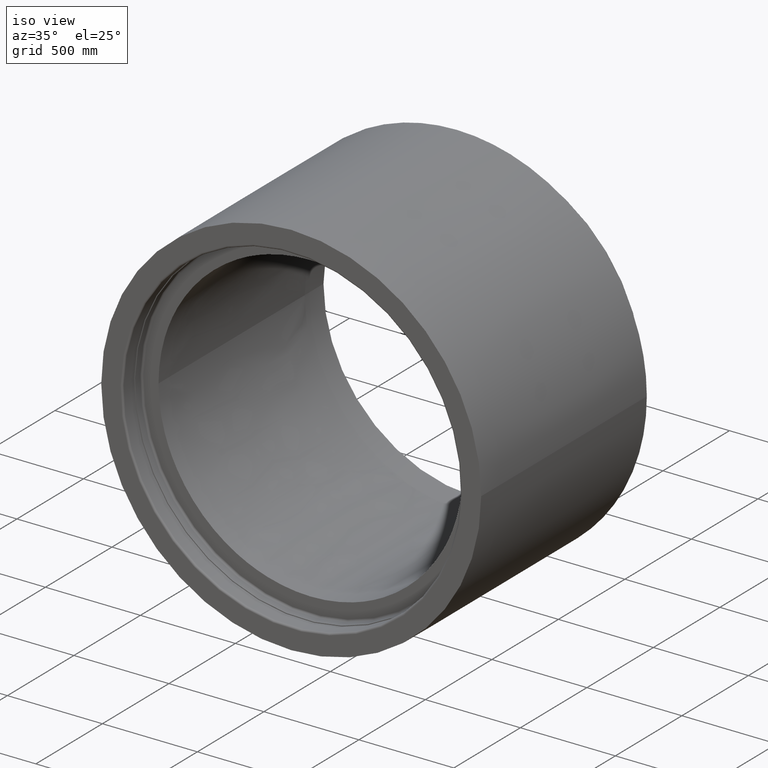
[diagram: clean part render]
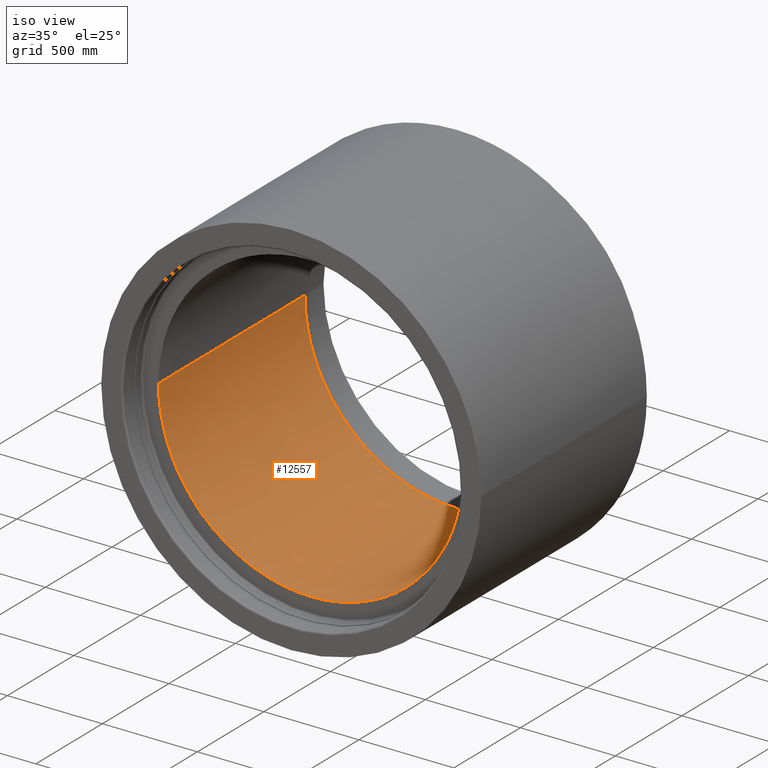
[diagram: same view with one face highlighted and labeled with its STEP entity id]
A machine part, iso view. The second image highlights one B-rep face of the part: STEP entity #12557.
In plain terms, the highlighted face is a freeform B-spline surface patch.
Its self-contained STEP definition (entity closure, byte-faithful):
#263 = ORIENTED_EDGE ( 'NONE', *, *, #22669, .F. ) ;
#284 = CARTESIAN_POINT ( 'NONE',  ( 0.0000000000000000000, 0.0000000000000000000, 1100.000000000000000 ) ) ;
#293 = CARTESIAN_POINT ( 'NONE',  ( 799.5785514088180435, -31.78170904867310398, 366.6666666666666856 ) ) ;
#308 = CARTESIAN_POINT ( 'NONE',  ( -702.1910649494287782, 383.3115335060172129, 1100.000000000000000 ) ) ;
#319 = AXIS2_PLACEMENT_3D ( 'NONE', #4467, #20432, #4586 ) ;
#342 = AXIS2_PLACEMENT_3D ( 'NONE', #16787, #15402, #9969 ) ;
#406 = CARTESIAN_POINT ( 'NONE',  ( 797.6959486832436141, -63.37803044931553131, 0.0000000000000000000 ) ) ;
#460 = DIRECTION ( 'NONE',  ( 1.000000000000000000, 0.0000000000000000000, 0.0000000000000000000 ) ) ;
#517 = FACE_OUTER_BOUND ( 'NONE', #4854, .T. ) ;
#544 = VERTEX_POINT ( 'NONE', #9349 ) ;
#564 = CARTESIAN_POINT ( 'NONE',  ( 702.1910585303028256, 383.3115299945911829, 5.551115123125782702E-14 ) ) ;
#668 = EDGE_CURVE ( 'NONE', #1052, #15465, #15838, .T. ) ;
#679 = CIRCLE ( 'NONE', #6593, 800.0000000000000000 ) ;
#740 = CARTESIAN_POINT ( 'NONE',  ( 212.1671872000005976, -799.9999999999993179, 733.3333333333333712 ) ) ;
#769 = VERTEX_POINT ( 'NONE', #20820 ) ;
#797 = EDGE_CURVE ( 'NONE', #769, #1052, #12148, .T. ) ;
#835 = VERTEX_POINT ( 'NONE', #9900 ) ;
#856 = CARTESIAN_POINT ( 'NONE',  ( 685.7053104007546835, 445.6655394977215678, 1100.000000000000000 ) ) ;
#912 = ORIENTED_EDGE ( 'NONE', *, *, #21025, .F. ) ;
#968 = CARTESIAN_POINT ( 'NONE',  ( -799.9999999999998863, -212.1671871999999439, 0.0000000000000000000 ) ) ;
#1052 = VERTEX_POINT ( 'NONE', #12331 ) ;
#1088 = CARTESIAN_POINT ( 'NONE',  ( -799.9999999999998863, -212.1671871999999439, 1100.000000000000000 ) ) ;
#1128 = EDGE_CURVE ( 'NONE', #21496, #835, #13607, .T. ) ;
#1153 = VERTEX_POINT ( 'NONE', #22613 ) ;
#1205 = CARTESIAN_POINT ( 'NONE',  ( 212.1671872000005976, -799.9999999999992042, 0.0000000000000000000 ) ) ;
#1320 = CARTESIAN_POINT ( 'NONE',  ( 799.9999999999997726, 10.60835936000093582, 1100.000000000000000 ) ) ;
#1433 = CIRCLE ( 'NONE', #2517, 800.0000000000000000 ) ;
#1451 = AXIS2_PLACEMENT_3D ( 'NONE', #12956, #20021, #2095 ) ;
#1552 = CARTESIAN_POINT ( 'NONE',  ( 800.0000000000000000, -2.343931406529778409E-30, 0.0000000000000000000 ) ) ;
#1719 = VERTEX_POINT ( 'NONE', #8368 ) ;
#1825 = CIRCLE ( 'NONE', #1451, 800.0000000000000000 ) ;
#1906 = DIRECTION ( 'NONE',  ( 0.0000000000000000000, 0.0000000000000000000, 1.000000000000000000 ) ) ;
#2024 = CARTESIAN_POINT ( 'NONE',  ( 799.9999999999997726, -10.60835935999907420, 0.0000000000000000000 ) ) ;
#2095 = DIRECTION ( 'NONE',  ( 1.000000000000000000, 0.0000000000000000000, 0.0000000000000000000 ) ) ;
#2154 = DIRECTION ( 'NONE',  ( 0.0000000000000000000, 0.0000000000000000000, 1.000000000000000000 ) ) ;
#2249 = VERTEX_POINT ( 'NONE', #19808 ) ;
#2471 = CARTESIAN_POINT ( 'NONE',  ( 799.5785514088180435, -31.78170904867310398, 1100.000000000000000 ) ) ;
#2517 = AXIS2_PLACEMENT_3D ( 'NONE', #12165, #10313, #22462 ) ;
#2584 = CARTESIAN_POINT ( 'NONE',  ( 685.7053104007547972, -445.6655394977190667, 0.0000000000000000000 ) ) ;
#2699 = CARTESIAN_POINT ( 'NONE',  ( -212.1671871999994607, -799.9999999999997726, 366.6666666666666856 ) ) ;
#2726 = ORIENTED_EDGE ( 'NONE', *, *, #18177, .T. ) ;
#2814 = CARTESIAN_POINT ( 'NONE',  ( 768.5265444599306193, -281.7858148035792283, 733.3333333333333712 ) ) ;
#2937 = CARTESIAN_POINT ( 'NONE',  ( 212.1671872000001713, 800.0000000000002274, 1100.000000000000000 ) ) ;
#3048 = CARTESIAN_POINT ( 'NONE',  ( 212.1671872000001713, 800.0000000000002274, 733.3333333333333712 ) ) ;
#3212 = CARTESIAN_POINT ( 'NONE',  ( -767.5662413405186726, 225.4818770128645156, 2.775557561562891351E-14 ) ) ;
#3259 = CIRCLE ( 'NONE', #7676, 800.0000000000000000 ) ;
#3275 = CIRCLE ( 'NONE', #9917, 800.0000000000000000 ) ;
#3277 = AXIS2_PLACEMENT_3D ( 'NONE', #9238, #19432, #17920 ) ;
#3318 = CIRCLE ( 'NONE', #6235, 800.0000000000000000 ) ;
#3394 = CARTESIAN_POINT ( 'NONE',  ( 794.5768320536110423, 94.77705267919952803, 366.6666666666666856 ) ) ;
#3415 = DIRECTION ( 'NONE',  ( 1.000000000000000000, 0.0000000000000000000, 0.0000000000000000000 ) ) ;
#3486 = EDGE_CURVE ( 'NONE', #835, #17785, #679, .T. ) ;
#3722 = DIRECTION ( 'NONE',  ( 0.0000000000000000000, 0.0000000000000000000, 1.000000000000000000 ) ) ;
#3951 = AXIS2_PLACEMENT_3D ( 'NONE', #4814, #11869, #11511 ) ;
#4070 = ORIENTED_EDGE ( 'NONE', *, *, #14926, .T. ) ;
#4161 = CARTESIAN_POINT ( 'NONE',  ( 0.0000000000000000000, 0.0000000000000000000, 0.0000000000000000000 ) ) ;
#4316 = CARTESIAN_POINT ( 'NONE',  ( 415.6605681348424355, 715.7102817636338159, 1100.000000000000000 ) ) ;
#4347 = AXIS2_PLACEMENT_3D ( 'NONE', #9144, #10997, #7296 ) ;
#4409 = CARTESIAN_POINT ( 'NONE',  ( 0.0000000000000000000, 0.0000000000000000000, 0.0000000000000000000 ) ) ;
#4435 = CARTESIAN_POINT ( 'NONE',  ( 768.5265444599309603, 281.7858148035815589, 733.3333333333333712 ) ) ;
#4467 = CARTESIAN_POINT ( 'NONE',  ( 0.0000000000000000000, 0.0000000000000000000, 1100.000000000000000 ) ) ;
#4526 = CARTESIAN_POINT ( 'NONE',  ( -800.0000000000001137, -1.065814103640150481E-12, 1100.000000000000000 ) ) ;
#4551 = CARTESIAN_POINT ( 'NONE',  ( 768.5265444599308466, -281.7858148035792283, 1100.000000000000000 ) ) ;
#4586 = DIRECTION ( 'NONE',  ( 1.000000000000000000, 0.0000000000000000000, 0.0000000000000000000 ) ) ;
#4673 = CARTESIAN_POINT ( 'NONE',  ( 415.6605681348423786, -715.7102817636321106, 733.3333333333333712 ) ) ;
#4776 = EDGE_CURVE ( 'NONE', #15465, #13871, #8834, .T. ) ;
#4790 = CARTESIAN_POINT ( 'NONE',  ( -799.9999999999998863, -212.1671871999999439, 366.6666666666666856 ) ) ;
#4799 = CARTESIAN_POINT ( 'NONE',  ( -800.0000000000001137, -1.065814103640150481E-12, 1100.000000000000000 ) ) ;
#4814 = CARTESIAN_POINT ( 'NONE',  ( 0.0000000000000000000, 0.0000000000000000000, 1100.000000000000000 ) ) ;
#4854 = EDGE_LOOP ( 'NONE', ( #10398, #16958, #912, #13634, #5300, #13983, #9612, #6578, #20321, #6854, #263, #16298, #6379, #11096, #11433, #15946, #15332, #4070, #6222, #12589, #9468, #14931, #21384, #20613, #7414, #2726 ) ) ;
#4899 = DIRECTION ( 'NONE',  ( 0.0000000000000000000, 0.0000000000000000000, 1.000000000000000000 ) ) ;
#5030 = DIRECTION ( 'NONE',  ( 1.000000000000000000, 0.0000000000000000000, 0.0000000000000000000 ) ) ;
#5035 = CARTESIAN_POINT ( 'NONE',  ( 800.0000000000000000, 9.678423597083619583E-13, 1100.000000000000000 ) ) ;
#5300 = ORIENTED_EDGE ( 'NONE', *, *, #11385, .F. ) ;
#5323 = DIRECTION ( 'NONE',  ( 1.000000000000000000, 0.0000000000000000000, 0.0000000000000000000 ) ) ;
#5325 = EDGE_CURVE ( 'NONE', #9956, #14025, #1825, .T. ) ;
#5410 = DIRECTION ( 'NONE',  ( 1.000000000000000000, 0.0000000000000000000, 0.0000000000000000000 ) ) ;
#5482 = CIRCLE ( 'NONE', #8440, 800.0000000000000000 ) ;
#5495 = CARTESIAN_POINT ( 'NONE',  ( 799.5785514088180435, -31.78170904867310398, 0.0000000000000000000 ) ) ;
#5705 = CARTESIAN_POINT ( 'NONE',  ( -565.6854249492388362, 565.6854249492372446, 1100.000000000000000 ) ) ;
#5716 = CARTESIAN_POINT ( 'NONE',  ( 794.5768320536110423, -94.77705267919728271, 1100.000000000000000 ) ) ;
#5831 = CARTESIAN_POINT ( 'NONE',  ( 799.9999999999997726, -10.60835935999907775, 733.3333333333333712 ) ) ;
#5876 = CIRCLE ( 'NONE', #342, 800.0000000000000000 ) ;
#6056 = CARTESIAN_POINT ( 'NONE',  ( -715.7102817636333612, 415.6605681348422081, 1100.000000000000000 ) ) ;
#6166 = CARTESIAN_POINT ( 'NONE',  ( 685.7053104007546835, 445.6655394977215678, 0.0000000000000000000 ) ) ;
#6222 = ORIENTED_EDGE ( 'NONE', *, *, #9938, .T. ) ;
#6235 = AXIS2_PLACEMENT_3D ( 'NONE', #11862, #20887, #5030 ) ;
#6256 = DIRECTION ( 'NONE',  ( 1.000000000000000000, 0.0000000000000000000, 0.0000000000000000000 ) ) ;
#6282 = CARTESIAN_POINT ( 'NONE',  ( 794.5768320536110423, -94.77705267919728271, 0.0000000000000000000 ) ) ;
#6379 = ORIENTED_EDGE ( 'NONE', *, *, #16416, .F. ) ;
#6399 = CARTESIAN_POINT ( 'NONE',  ( -415.6605681348422081, 715.7102817636339296, 733.3333333333333712 ) ) ;
#6467 = DIRECTION ( 'NONE',  ( 1.000000000000000000, 0.0000000000000000000, 0.0000000000000000000 ) ) ;
#6478 = CARTESIAN_POINT ( 'NONE',  ( 383.3115335016817653, 702.1910649517780030, 1100.000000000000000 ) ) ;
#6515 = CARTESIAN_POINT ( 'NONE',  ( -800.0000000000001137, 212.1671872000003987, 733.3333333333333712 ) ) ;
#6578 = ORIENTED_EDGE ( 'NONE', *, *, #9434, .F. ) ;
#6593 = AXIS2_PLACEMENT_3D ( 'NONE', #18028, #20211, #7718 ) ;
#6651 = CARTESIAN_POINT ( 'NONE',  ( 0.0000000000000000000, 0.0000000000000000000, 0.0000000000000000000 ) ) ;
#6854 = ORIENTED_EDGE ( 'NONE', *, *, #21451, .F. ) ;
#6856 = CARTESIAN_POINT ( 'NONE',  ( 799.5785514088180435, 31.78170904867497271, 0.0000000000000000000 ) ) ;
#6967 = CARTESIAN_POINT ( 'NONE',  ( 799.9999999999997726, 10.60835936000093582, 733.3333333333333712 ) ) ;
#6995 = VERTEX_POINT ( 'NONE', #8748 ) ;
#7069 = CARTESIAN_POINT ( 'NONE',  ( 0.0000000000000000000, 0.0000000000000000000, 1100.000000000000000 ) ) ;
#7081 = CARTESIAN_POINT ( 'NONE',  ( 799.9999999999997726, 10.60835936000093582, 366.6666666666666856 ) ) ;
#7274 = CARTESIAN_POINT ( 'NONE',  ( 0.0000000000000000000, 0.0000000000000000000, 0.0000000000000000000 ) ) ;
#7296 = DIRECTION ( 'NONE',  ( 1.000000000000000000, 0.0000000000000000000, 0.0000000000000000000 ) ) ;
#7333 = CARTESIAN_POINT ( 'NONE',  ( 797.6959486832436141, -63.37803044931553131, 366.6666666666666856 ) ) ;
#7358 = CIRCLE ( 'NONE', #7719, 800.0000000000000000 ) ;
#7414 = ORIENTED_EDGE ( 'NONE', *, *, #20977, .T. ) ;
#7499 = VERTEX_POINT ( 'NONE', #308 ) ;
#7505 = VERTEX_POINT ( 'NONE', #21032 ) ;
#7619 = DIRECTION ( 'NONE',  ( 1.000000000000000000, 0.0000000000000000000, 0.0000000000000000000 ) ) ;
#7676 = AXIS2_PLACEMENT_3D ( 'NONE', #12068, #4899, #15756 ) ;
#7693 = AXIS2_PLACEMENT_3D ( 'NONE', #15430, #15200, #13226 ) ;
#7718 = DIRECTION ( 'NONE',  ( 1.000000000000000000, 0.0000000000000000000, 0.0000000000000000000 ) ) ;
#7719 = AXIS2_PLACEMENT_3D ( 'NONE', #7878, #11246, #22004 ) ;
#7780 = CARTESIAN_POINT ( 'NONE',  ( -415.6605681348412986, -715.7102817636333612, 1100.000000000000000 ) ) ;
#7850 = CARTESIAN_POINT ( 'NONE',  ( 225.4818770127755272, 767.5662413404133986, 8.326672684688674053E-14 ) ) ;
#7878 = CARTESIAN_POINT ( 'NONE',  ( 0.0000000000000000000, 0.0000000000000000000, 0.0000000000000000000 ) ) ;
#7895 = CARTESIAN_POINT ( 'NONE',  ( 685.7053104007547972, 445.6655394977215678, 733.3333333333333712 ) ) ;
#8010 = CARTESIAN_POINT ( 'NONE',  ( 212.1671872000001713, 800.0000000000002274, 366.6666666666666856 ) ) ;
#8129 = CARTESIAN_POINT ( 'NONE',  ( -212.1671871999999155, 800.0000000000002274, 733.3333333333333712 ) ) ;
#8248 = CARTESIAN_POINT ( 'NONE',  ( -715.7102817636333612, 415.6605681348422081, 366.6666666666666856 ) ) ;
#8363 = CARTESIAN_POINT ( 'NONE',  ( 794.5768320536110423, 94.77705267919954224, 0.0000000000000000000 ) ) ;
#8368 = CARTESIAN_POINT ( 'NONE',  ( 565.6854249492380404, 565.6854249492380404, 1.110223024625156540E-13 ) ) ;
#8424 = EDGE_CURVE ( 'NONE', #11603, #769, #5876, .T. ) ;
#8440 = AXIS2_PLACEMENT_3D ( 'NONE', #7274, #12713, #460 ) ;
#8497 = DIRECTION ( 'NONE',  ( 1.000000000000000000, 0.0000000000000000000, 0.0000000000000000000 ) ) ;
#8615 = CARTESIAN_POINT ( 'NONE',  ( 799.9999999999997726, 1.024354212564304589E-12, 366.6666666666666856 ) ) ;
#8748 = CARTESIAN_POINT ( 'NONE',  ( 565.6854249492372446, 565.6854249492389499, 1100.000000000000000 ) ) ;
#8756 = CIRCLE ( 'NONE', #3951, 800.0000000000000000 ) ;
#8820 = CARTESIAN_POINT ( 'NONE',  ( 799.5785514088180435, 31.78170904867497271, 733.3333333333333712 ) ) ;
#8834 = CIRCLE ( 'NONE', #14737, 800.0000000000000000 ) ;
#8990 = DIRECTION ( 'NONE',  ( 0.0000000000000000000, 0.0000000000000000000, 1.000000000000000000 ) ) ;
#9070 = CARTESIAN_POINT ( 'NONE',  ( 797.6959486832436141, -63.37803044931553131, 733.3333333333333712 ) ) ;
#9144 = CARTESIAN_POINT ( 'NONE',  ( 0.0000000000000000000, 0.0000000000000000000, 0.0000000000000000000 ) ) ;
#9238 = CARTESIAN_POINT ( 'NONE',  ( 0.0000000000000000000, 0.0000000000000000000, 1100.000000000000000 ) ) ;
#9300 = CARTESIAN_POINT ( 'NONE',  ( 799.9999999999997726, 1.025221574302292993E-12, 1100.000000000000000 ) ) ;
#9349 = CARTESIAN_POINT ( 'NONE',  ( -800.0000000000001137, 1.600081744284097638E-13, 0.0000000000000000000 ) ) ;
#9353 = VERTEX_POINT ( 'NONE', #18627 ) ;
#9400 = DIRECTION ( 'NONE',  ( 1.000000000000000000, 0.0000000000000000000, 0.0000000000000000000 ) ) ;
#9434 = EDGE_CURVE ( 'NONE', #7505, #21496, #10327, .T. ) ;
#9468 = ORIENTED_EDGE ( 'NONE', *, *, #797, .T. ) ;
#9612 = ORIENTED_EDGE ( 'NONE', *, *, #1128, .F. ) ;
#9636 = CARTESIAN_POINT ( 'NONE',  ( 415.6605681348424355, 715.7102817636338159, 733.3333333333333712 ) ) ;
#9726 = CARTESIAN_POINT ( 'NONE',  ( -800.0000000000000000, 2.220446049250313081E-13, 733.3333333333333712 ) ) ;
#9751 = CARTESIAN_POINT ( 'NONE',  ( -212.1671871999999155, 800.0000000000002274, 366.6666666666666856 ) ) ;
#9867 = CARTESIAN_POINT ( 'NONE',  ( 685.7053104007547972, -445.6655394977190667, 733.3333333333333712 ) ) ;
#9900 = CARTESIAN_POINT ( 'NONE',  ( -383.3115299925494810, 702.1910585313635238, 5.551115123125782702E-14 ) ) ;
#9917 = AXIS2_PLACEMENT_3D ( 'NONE', #16296, #21178, #5323 ) ;
#9938 = EDGE_CURVE ( 'NONE', #6995, #11603, #11420, .T. ) ;
#9956 = VERTEX_POINT ( 'NONE', #15018 ) ;
#9969 = DIRECTION ( 'NONE',  ( 1.000000000000000000, 0.0000000000000000000, 0.0000000000000000000 ) ) ;
#9988 = CARTESIAN_POINT ( 'NONE',  ( -715.7102817636330201, -415.6605681348418102, 366.6666666666666856 ) ) ;
#10313 = DIRECTION ( 'NONE',  ( 0.0000000000000000000, 0.0000000000000000000, 1.000000000000000000 ) ) ;
#10327 = CIRCLE ( 'NONE', #12535, 800.0000000000000000 ) ;
#10336 = CARTESIAN_POINT ( 'NONE',  ( 799.5785514088180435, 31.78170904867497271, 1100.000000000000000 ) ) ;
#10359 = CARTESIAN_POINT ( 'NONE',  ( 799.9999999999997726, 1.024354212564304589E-12, 733.3333333333333712 ) ) ;
#10398 = ORIENTED_EDGE ( 'NONE', *, *, #11184, .T. ) ;
#10701 = EDGE_CURVE ( 'NONE', #13871, #11188, #16586, .T. ) ;
#10921 = CARTESIAN_POINT ( 'NONE',  ( 797.6959486832436141, -63.37803044931553131, 1100.000000000000000 ) ) ;
#10997 = DIRECTION ( 'NONE',  ( 0.0000000000000000000, 0.0000000000000000000, 1.000000000000000000 ) ) ;
#11006 = CIRCLE ( 'NONE', #18032, 800.0000000000000000 ) ;
#11096 = ORIENTED_EDGE ( 'NONE', *, *, #14739, .F. ) ;
#11121 = EDGE_CURVE ( 'NONE', #9956, #15063, #13448, .T. ) ;
#11184 = EDGE_CURVE ( 'NONE', #18810, #22515, #11758, .T. ) ;
#11188 = VERTEX_POINT ( 'NONE', #5705 ) ;
#11246 = DIRECTION ( 'NONE',  ( 0.0000000000000000000, 0.0000000000000000000, 1.000000000000000000 ) ) ;
#11374 = CARTESIAN_POINT ( 'NONE',  ( -212.1671871999999155, 800.0000000000002274, 1100.000000000000000 ) ) ;
#11385 = EDGE_CURVE ( 'NONE', #17785, #9353, #18773, .T. ) ;
#11420 = CIRCLE ( 'NONE', #22520, 800.0000000000000000 ) ;
#11433 = ORIENTED_EDGE ( 'NONE', *, *, #11121, .F. ) ;
#11462 = CARTESIAN_POINT ( 'NONE',  ( -383.3115342907465788, 702.1910664058704015, 1100.000000000000000 ) ) ;
#11489 = CARTESIAN_POINT ( 'NONE',  ( 768.5265444599309603, 281.7858148035815589, 366.6666666666666856 ) ) ;
#11511 = DIRECTION ( 'NONE',  ( 1.000000000000000000, 0.0000000000000000000, 0.0000000000000000000 ) ) ;
#11580 = CARTESIAN_POINT ( 'NONE',  ( -800.0000000000000000, 2.220446049250313081E-13, 366.6666666666666856 ) ) ;
#11603 = VERTEX_POINT ( 'NONE', #6478 ) ;
#11605 = CARTESIAN_POINT ( 'NONE',  ( -212.1671871999994607, -799.9999999999997726, 0.0000000000000000000 ) ) ;
#11616 = CARTESIAN_POINT ( 'NONE',  ( -767.5662499476437688, 225.4818795416160526, 1100.000000000000000 ) ) ;
#11723 = CARTESIAN_POINT ( 'NONE',  ( -715.7102817636333612, 415.6605681348422081, 733.3333333333333712 ) ) ;
#11758 = CIRCLE ( 'NONE', #15064, 800.0000000000000000 ) ;
#11844 = CARTESIAN_POINT ( 'NONE',  ( -800.0000000000001137, 212.1671872000003987, 0.0000000000000000000 ) ) ;
#11862 = CARTESIAN_POINT ( 'NONE',  ( 0.0000000000000000000, 0.0000000000000000000, 1100.000000000000000 ) ) ;
#11869 = DIRECTION ( 'NONE',  ( 0.0000000000000000000, 0.0000000000000000000, 1.000000000000000000 ) ) ;
#11958 = CARTESIAN_POINT ( 'NONE',  ( 797.6959486832436141, 63.37803044931740715, 366.6666666666666856 ) ) ;
#12068 = CARTESIAN_POINT ( 'NONE',  ( 0.0000000000000000000, 0.0000000000000000000, 0.0000000000000000000 ) ) ;
#12073 = CARTESIAN_POINT ( 'NONE',  ( 799.9999999999997726, 1.024354212564304589E-12, 366.6666666666666856 ) ) ;
#12129 = AXIS2_PLACEMENT_3D ( 'NONE', #4409, #20374, #6256 ) ;
#12148 = CIRCLE ( 'NONE', #319, 800.0000000000000000 ) ;
#12165 = CARTESIAN_POINT ( 'NONE',  ( 0.0000000000000000000, 0.0000000000000000000, 0.0000000000000000000 ) ) ;
#12214 = DIRECTION ( 'NONE',  ( 0.0000000000000000000, 0.0000000000000000000, 1.000000000000000000 ) ) ;
#12331 = CARTESIAN_POINT ( 'NONE',  ( -1.110223024625156540E-12, 800.0000000000000000, 1100.000000000000000 ) ) ;
#12492 = AXIS2_PLACEMENT_3D ( 'NONE', #4161, #21632, #7619 ) ;
#12502 = AXIS2_PLACEMENT_3D ( 'NONE', #21589, #2154, #14640 ) ;
#12535 = AXIS2_PLACEMENT_3D ( 'NONE', #22880, #8990, #5410 ) ;
#12557 = ADVANCED_FACE ( 'NONE', ( #517 ), #16833, .F. ) ;
#12589 = ORIENTED_EDGE ( 'NONE', *, *, #8424, .T. ) ;
#12713 = DIRECTION ( 'NONE',  ( 0.0000000000000000000, 0.0000000000000000000, 1.000000000000000000 ) ) ;
#12772 = CARTESIAN_POINT ( 'NONE',  ( 799.9999999999997726, 1.024354212564304589E-12, 733.3333333333333712 ) ) ;
#12956 = CARTESIAN_POINT ( 'NONE',  ( 0.0000000000000000000, 0.0000000000000000000, 1100.000000000000000 ) ) ;
#13087 = CARTESIAN_POINT ( 'NONE',  ( -225.4818772459884144, 767.5662421341555728, 8.326672684688674053E-14 ) ) ;
#13103 = CARTESIAN_POINT ( 'NONE',  ( -415.6605681348422081, 715.7102817636340433, 1100.000000000000000 ) ) ;
#13216 = CARTESIAN_POINT ( 'NONE',  ( 768.5265444599309603, 281.7858148035815589, 1100.000000000000000 ) ) ;
#13226 = DIRECTION ( 'NONE',  ( 1.000000000000000000, 0.0000000000000000000, 0.0000000000000000000 ) ) ;
#13229 = AXIS2_PLACEMENT_3D ( 'NONE', #6651, #13704, #8497 ) ;
#13336 = CARTESIAN_POINT ( 'NONE',  ( 768.5265444599307330, -281.7858148035792283, 366.6666666666666856 ) ) ;
#13375 = EDGE_CURVE ( 'NONE', #9353, #19418, #14339, .T. ) ;
#13448 = B_SPLINE_CURVE_WITH_KNOTS ( 'NONE', 3,
 ( #5035, #10359, #8615, #15672 ),
 .UNSPECIFIED., .F., .F.,
 ( 4, 4 ),
 ( 0.0000000000000000000, 1.000000000000000000 ),
 .UNSPECIFIED. ) ;
#13451 = CARTESIAN_POINT ( 'NONE',  ( -415.6605681348412986, -715.7102817636333612, 733.3333333333333712 ) ) ;
#13569 = CARTESIAN_POINT ( 'NONE',  ( -415.6605681348412986, -715.7102817636333612, 366.6666666666666856 ) ) ;
#13607 = CIRCLE ( 'NONE', #13229, 800.0000000000000000 ) ;
#13634 = ORIENTED_EDGE ( 'NONE', *, *, #13375, .F. ) ;
#13704 = DIRECTION ( 'NONE',  ( 0.0000000000000000000, 0.0000000000000000000, 1.000000000000000000 ) ) ;
#13773 = EDGE_CURVE ( 'NONE', #22515, #544, #18536, .T. ) ;
#13809 = EDGE_CURVE ( 'NONE', #17137, #7505, #17294, .T. ) ;
#13871 = VERTEX_POINT ( 'NONE', #11462 ) ;
#13983 = ORIENTED_EDGE ( 'NONE', *, *, #3486, .F. ) ;
#14025 = VERTEX_POINT ( 'NONE', #14778 ) ;
#14027 = CARTESIAN_POINT ( 'NONE',  ( 794.5768320536110423, 94.77705267919954224, 1100.000000000000000 ) ) ;
#14096 = VERTEX_POINT ( 'NONE', #564 ) ;
#14131 = DIRECTION ( 'NONE',  ( 1.000000000000000000, 0.0000000000000000000, 0.0000000000000000000 ) ) ;
#14141 = CARTESIAN_POINT ( 'NONE',  ( 797.6959486832436141, 63.37803044931740715, 1100.000000000000000 ) ) ;
#14230 = CARTESIAN_POINT ( 'NONE',  ( -225.4818790753007818, 767.5662483603443889, 1100.000000000000000 ) ) ;
#14285 = CARTESIAN_POINT ( 'NONE',  ( 799.5785514088180435, -31.78170904867310398, 733.3333333333333712 ) ) ;
#14339 = CIRCLE ( 'NONE', #12492, 800.0000000000000000 ) ;
#14398 = CARTESIAN_POINT ( 'NONE',  ( 794.5768320536110423, -94.77705267919728271, 733.3333333333333712 ) ) ;
#14640 = DIRECTION ( 'NONE',  ( 1.000000000000000000, 0.0000000000000000000, 0.0000000000000000000 ) ) ;
#14680 = VERTEX_POINT ( 'NONE', #22706 ) ;
#14737 = AXIS2_PLACEMENT_3D ( 'NONE', #7069, #3722, #14131 ) ;
#14739 = EDGE_CURVE ( 'NONE', #15063, #14680, #3259, .T. ) ;
#14778 = CARTESIAN_POINT ( 'NONE',  ( 767.5662483548252339, 225.4818790944825082, 1100.000000000000000 ) ) ;
#14841 = CARTESIAN_POINT ( 'NONE',  ( 415.6605681348423218, -715.7102817636322243, 0.0000000000000000000 ) ) ;
#14926 = EDGE_CURVE ( 'NONE', #2249, #6995, #11006, .T. ) ;
#14931 = ORIENTED_EDGE ( 'NONE', *, *, #668, .T. ) ;
#14954 = CARTESIAN_POINT ( 'NONE',  ( -800.0000000000001137, 212.1671872000003987, 1100.000000000000000 ) ) ;
#15018 = CARTESIAN_POINT ( 'NONE',  ( 800.0000000000000000, 9.678423597083619583E-13, 1100.000000000000000 ) ) ;
#15063 = VERTEX_POINT ( 'NONE', #1552 ) ;
#15064 = AXIS2_PLACEMENT_3D ( 'NONE', #284, #16118, #9400 ) ;
#15066 = CARTESIAN_POINT ( 'NONE',  ( 212.1671872000001713, 800.0000000000002274, 0.0000000000000000000 ) ) ;
#15190 = CARTESIAN_POINT ( 'NONE',  ( -800.0000000000001137, 212.1671872000003987, 366.6666666666666856 ) ) ;
#15200 = DIRECTION ( 'NONE',  ( 0.0000000000000000000, 0.0000000000000000000, 1.000000000000000000 ) ) ;
#15305 = CARTESIAN_POINT ( 'NONE',  ( -212.1671871999994607, -799.9999999999997726, 733.3333333333333712 ) ) ;
#15332 = ORIENTED_EDGE ( 'NONE', *, *, #16853, .T. ) ;
#15402 = DIRECTION ( 'NONE',  ( 0.0000000000000000000, 0.0000000000000000000, 1.000000000000000000 ) ) ;
#15430 = CARTESIAN_POINT ( 'NONE',  ( 0.0000000000000000000, 0.0000000000000000000, 0.0000000000000000000 ) ) ;
#15465 = VERTEX_POINT ( 'NONE', #14230 ) ;
#15540 = CARTESIAN_POINT ( 'NONE',  ( 799.9999999999997726, 1.025221574302292993E-12, 1100.000000000000000 ) ) ;
#15672 = CARTESIAN_POINT ( 'NONE',  ( 800.0000000000000000, -2.343931406529778409E-30, 0.0000000000000000000 ) ) ;
#15756 = DIRECTION ( 'NONE',  ( 1.000000000000000000, 0.0000000000000000000, 0.0000000000000000000 ) ) ;
#15838 = CIRCLE ( 'NONE', #3277, 800.0000000000000000 ) ;
#15878 = CARTESIAN_POINT ( 'NONE',  ( 799.9999999999997726, 1.024354212564304589E-12, 733.3333333333333712 ) ) ;
#15946 = ORIENTED_EDGE ( 'NONE', *, *, #5325, .T. ) ;
#16118 = DIRECTION ( 'NONE',  ( 0.0000000000000000000, 0.0000000000000000000, 1.000000000000000000 ) ) ;
#16296 = CARTESIAN_POINT ( 'NONE',  ( 0.0000000000000000000, 0.0000000000000000000, 1100.000000000000000 ) ) ;
#16298 = ORIENTED_EDGE ( 'NONE', *, *, #22329, .F. ) ;
#16416 = EDGE_CURVE ( 'NONE', #14680, #14096, #7358, .T. ) ;
#16567 = CIRCLE ( 'NONE', #7693, 800.0000000000000000 ) ;
#16580 = CARTESIAN_POINT ( 'NONE',  ( -415.6605681348422081, 715.7102817636339296, 366.6666666666666856 ) ) ;
#16586 = CIRCLE ( 'NONE', #20291, 800.0000000000000000 ) ;
#16694 = CARTESIAN_POINT ( 'NONE',  ( 415.6605681348424355, 715.7102817636338159, 366.6666666666666856 ) ) ;
#16787 = CARTESIAN_POINT ( 'NONE',  ( 0.0000000000000000000, 0.0000000000000000000, 1100.000000000000000 ) ) ;
#16805 = CARTESIAN_POINT ( 'NONE',  ( -212.1671871999994607, -799.9999999999997726, 1100.000000000000000 ) ) ;
#16833 = B_SPLINE_SURFACE_WITH_KNOTS ( 'NONE', 3, 3, ( 
 ( #9300, #12772, #18315, #21680 ),
 ( #19719, #5831, #17867, #2024 ),
 ( #2471, #14285, #293, #5495 ),
 ( #10921, #9070, #7333, #406 ),
 ( #5716, #14398, #21459, #6282 ),
 ( #4551, #2814, #13336, #20282 ),
 ( #22368, #9867, #20400, #2584 ),
 ( #20516, #4673, #16923, #14841 ),
 ( #20636, #740, #18426, #1205 ),
 ( #16805, #15305, #2699, #11605 ),
 ( #7780, #13451, #13569, #18657 ),
 ( #20165, #21904, #9988, #18776 ),
 ( #1088, #17043, #4790, #968 ),
 ( #14954, #6515, #15190, #11844 ),
 ( #6056, #11723, #8248, #18894 ),
 ( #13103, #6399, #16580, #22133 ),
 ( #11374, #8129, #9751, #22253 ),
 ( #2937, #3048, #8010, #15066 ),
 ( #4316, #9636, #16694, #18540 ),
 ( #856, #7895, #22019, #6166 ),
 ( #13216, #4435, #11489, #22487 ),
 ( #14027, #21095, #3394, #8363 ),
 ( #14141, #17158, #11958, #17608 ),
 ( #10336, #8820, #19122, #6856 ),
 ( #1320, #6967, #7081, #20984 ),
 ( #15540, #15878, #12073, #17389 ) ),
 .UNSPECIFIED., .T., .F., .F.,
 ( 4, 1, 1, 1, 1, 2, 2, 2, 2, 2, 2, 2, 1, 1, 1, 1, 4 ),
 ( 4, 4 ),
 ( 0.0000000000000000000, 0.006250000000000088818, 0.01249999999999995559, 0.01875000000000004441, 0.02499999999999991118, 0.1250000000000000000, 0.2500000000000000000, 0.3750000000000000000, 0.5000000000000000000, 0.6250000000000000000, 0.7500000000000000000, 0.8750000000000000000, 0.9749999999999999778, 0.9812499999999999556, 0.9875000000000000444, 0.9937500000000000222, 1.000000000000000000 ),
 ( 0.0000000000000000000, 1.000000000000000000 ),
 .UNSPECIFIED. ) ;
#16853 = EDGE_CURVE ( 'NONE', #14025, #2249, #3318, .T. ) ;
#16923 = CARTESIAN_POINT ( 'NONE',  ( 415.6605681348423786, -715.7102817636321106, 366.6666666666666856 ) ) ;
#16958 = ORIENTED_EDGE ( 'NONE', *, *, #13773, .T. ) ;
#16997 = DIRECTION ( 'NONE',  ( 0.0000000000000000000, 0.0000000000000000000, 1.000000000000000000 ) ) ;
#17043 = CARTESIAN_POINT ( 'NONE',  ( -799.9999999999998863, -212.1671871999999439, 733.3333333333333712 ) ) ;
#17137 = VERTEX_POINT ( 'NONE', #7850 ) ;
#17158 = CARTESIAN_POINT ( 'NONE',  ( 797.6959486832436141, 63.37803044931740715, 733.3333333333333712 ) ) ;
#17294 = CIRCLE ( 'NONE', #12129, 800.0000000000000000 ) ;
#17295 = CARTESIAN_POINT ( 'NONE',  ( 0.0000000000000000000, 0.0000000000000000000, 1100.000000000000000 ) ) ;
#17389 = CARTESIAN_POINT ( 'NONE',  ( 799.9999999999997726, 1.025221574302292993E-12, 0.0000000000000000000 ) ) ;
#17418 = CARTESIAN_POINT ( 'NONE',  ( 0.0000000000000000000, 0.0000000000000000000, 1100.000000000000000 ) ) ;
#17608 = CARTESIAN_POINT ( 'NONE',  ( 797.6959486832436141, 63.37803044931740715, 0.0000000000000000000 ) ) ;
#17785 = VERTEX_POINT ( 'NONE', #22277 ) ;
#17867 = CARTESIAN_POINT ( 'NONE',  ( 799.9999999999997726, -10.60835935999907775, 366.6666666666666856 ) ) ;
#17920 = DIRECTION ( 'NONE',  ( 1.000000000000000000, 0.0000000000000000000, 0.0000000000000000000 ) ) ;
#18028 = CARTESIAN_POINT ( 'NONE',  ( 0.0000000000000000000, 0.0000000000000000000, 0.0000000000000000000 ) ) ;
#18032 = AXIS2_PLACEMENT_3D ( 'NONE', #17418, #12214, #19267 ) ;
#18177 = EDGE_CURVE ( 'NONE', #7499, #18810, #8756, .T. ) ;
#18315 = CARTESIAN_POINT ( 'NONE',  ( 799.9999999999997726, 1.024354212564304589E-12, 366.6666666666666856 ) ) ;
#18426 = CARTESIAN_POINT ( 'NONE',  ( 212.1671872000005976, -799.9999999999993179, 366.6666666666666856 ) ) ;
#18536 = B_SPLINE_CURVE_WITH_KNOTS ( 'NONE', 3,
 ( #4526, #9726, #11580, #21878 ),
 .UNSPECIFIED., .F., .F.,
 ( 4, 4 ),
 ( 0.0000000000000000000, 1.000000000000000000 ),
 .UNSPECIFIED. ) ;
#18540 = CARTESIAN_POINT ( 'NONE',  ( 415.6605681348424355, 715.7102817636338159, 0.0000000000000000000 ) ) ;
#18627 = CARTESIAN_POINT ( 'NONE',  ( -702.1910592531257862, 383.3115303968453986, 2.775557561562891351E-14 ) ) ;
#18657 = CARTESIAN_POINT ( 'NONE',  ( -415.6605681348412986, -715.7102817636333612, 0.0000000000000000000 ) ) ;
#18773 = CIRCLE ( 'NONE', #4347, 800.0000000000000000 ) ;
#18776 = CARTESIAN_POINT ( 'NONE',  ( -715.7102817636331338, -415.6605681348418102, 0.0000000000000000000 ) ) ;
#18810 = VERTEX_POINT ( 'NONE', #11616 ) ;
#18894 = CARTESIAN_POINT ( 'NONE',  ( -715.7102817636333612, 415.6605681348422081, 0.0000000000000000000 ) ) ;
#19122 = CARTESIAN_POINT ( 'NONE',  ( 799.5785514088180435, 31.78170904867497271, 366.6666666666666856 ) ) ;
#19267 = DIRECTION ( 'NONE',  ( 1.000000000000000000, 0.0000000000000000000, 0.0000000000000000000 ) ) ;
#19418 = VERTEX_POINT ( 'NONE', #3212 ) ;
#19432 = DIRECTION ( 'NONE',  ( 0.0000000000000000000, 0.0000000000000000000, 1.000000000000000000 ) ) ;
#19719 = CARTESIAN_POINT ( 'NONE',  ( 799.9999999999997726, -10.60835935999907420, 1100.000000000000000 ) ) ;
#19808 = CARTESIAN_POINT ( 'NONE',  ( 702.1910664046671400, 383.3115342927109168, 1100.000000000000000 ) ) ;
#20021 = DIRECTION ( 'NONE',  ( 0.0000000000000000000, 0.0000000000000000000, 1.000000000000000000 ) ) ;
#20165 = CARTESIAN_POINT ( 'NONE',  ( -715.7102817636331338, -415.6605681348418102, 1100.000000000000000 ) ) ;
#20211 = DIRECTION ( 'NONE',  ( 0.0000000000000000000, 0.0000000000000000000, 1.000000000000000000 ) ) ;
#20282 = CARTESIAN_POINT ( 'NONE',  ( 768.5265444599308466, -281.7858148035792283, 0.0000000000000000000 ) ) ;
#20291 = AXIS2_PLACEMENT_3D ( 'NONE', #17295, #1906, #3415 ) ;
#20321 = ORIENTED_EDGE ( 'NONE', *, *, #13809, .F. ) ;
#20374 = DIRECTION ( 'NONE',  ( 0.0000000000000000000, 0.0000000000000000000, 1.000000000000000000 ) ) ;
#20400 = CARTESIAN_POINT ( 'NONE',  ( 685.7053104007547972, -445.6655394977190667, 366.6666666666666856 ) ) ;
#20432 = DIRECTION ( 'NONE',  ( 0.0000000000000000000, 0.0000000000000000000, 1.000000000000000000 ) ) ;
#20516 = CARTESIAN_POINT ( 'NONE',  ( 415.6605681348423218, -715.7102817636322243, 1100.000000000000000 ) ) ;
#20613 = ORIENTED_EDGE ( 'NONE', *, *, #10701, .T. ) ;
#20636 = CARTESIAN_POINT ( 'NONE',  ( 212.1671872000005976, -799.9999999999992042, 1100.000000000000000 ) ) ;
#20820 = CARTESIAN_POINT ( 'NONE',  ( 225.4818795416254602, 767.5662499478736436, 1100.000000000000000 ) ) ;
#20829 = CARTESIAN_POINT ( 'NONE',  ( 0.0000000000000000000, 0.0000000000000000000, 1100.000000000000000 ) ) ;
#20887 = DIRECTION ( 'NONE',  ( 0.0000000000000000000, 0.0000000000000000000, 1.000000000000000000 ) ) ;
#20977 = EDGE_CURVE ( 'NONE', #11188, #7499, #3275, .T. ) ;
#20984 = CARTESIAN_POINT ( 'NONE',  ( 799.9999999999997726, 10.60835936000093582, 0.0000000000000000000 ) ) ;
#21025 = EDGE_CURVE ( 'NONE', #19418, #544, #5482, .T. ) ;
#21032 = CARTESIAN_POINT ( 'NONE',  ( 5.551115123125782702E-14, 800.0000000000000000, 1.665334536937734811E-13 ) ) ;
#21095 = CARTESIAN_POINT ( 'NONE',  ( 794.5768320536110423, 94.77705267919951382, 733.3333333333333712 ) ) ;
#21178 = DIRECTION ( 'NONE',  ( 0.0000000000000000000, 0.0000000000000000000, 1.000000000000000000 ) ) ;
#21384 = ORIENTED_EDGE ( 'NONE', *, *, #4776, .T. ) ;
#21451 = EDGE_CURVE ( 'NONE', #1153, #17137, #22854, .T. ) ;
#21459 = CARTESIAN_POINT ( 'NONE',  ( 794.5768320536110423, -94.77705267919728271, 366.6666666666666856 ) ) ;
#21496 = VERTEX_POINT ( 'NONE', #13087 ) ;
#21589 = CARTESIAN_POINT ( 'NONE',  ( 0.0000000000000000000, 0.0000000000000000000, 0.0000000000000000000 ) ) ;
#21632 = DIRECTION ( 'NONE',  ( 0.0000000000000000000, 0.0000000000000000000, 1.000000000000000000 ) ) ;
#21680 = CARTESIAN_POINT ( 'NONE',  ( 799.9999999999997726, 1.025221574302292993E-12, 0.0000000000000000000 ) ) ;
#21878 = CARTESIAN_POINT ( 'NONE',  ( -800.0000000000001137, 1.600081744284097638E-13, 0.0000000000000000000 ) ) ;
#21904 = CARTESIAN_POINT ( 'NONE',  ( -715.7102817636330201, -415.6605681348418102, 733.3333333333333712 ) ) ;
#22004 = DIRECTION ( 'NONE',  ( 1.000000000000000000, 0.0000000000000000000, 0.0000000000000000000 ) ) ;
#22019 = CARTESIAN_POINT ( 'NONE',  ( 685.7053104007547972, 445.6655394977215110, 366.6666666666666856 ) ) ;
#22133 = CARTESIAN_POINT ( 'NONE',  ( -415.6605681348422081, 715.7102817636340433, 0.0000000000000000000 ) ) ;
#22253 = CARTESIAN_POINT ( 'NONE',  ( -212.1671871999999155, 800.0000000000002274, 0.0000000000000000000 ) ) ;
#22277 = CARTESIAN_POINT ( 'NONE',  ( -565.6854249492379267, 565.6854249492381541, 1.110223024625156540E-13 ) ) ;
#22329 = EDGE_CURVE ( 'NONE', #14096, #1719, #1433, .T. ) ;
#22368 = CARTESIAN_POINT ( 'NONE',  ( 685.7053104007547972, -445.6655394977190667, 1100.000000000000000 ) ) ;
#22462 = DIRECTION ( 'NONE',  ( 1.000000000000000000, 0.0000000000000000000, 0.0000000000000000000 ) ) ;
#22487 = CARTESIAN_POINT ( 'NONE',  ( 768.5265444599309603, 281.7858148035815589, 0.0000000000000000000 ) ) ;
#22515 = VERTEX_POINT ( 'NONE', #4799 ) ;
#22520 = AXIS2_PLACEMENT_3D ( 'NONE', #20829, #16997, #6467 ) ;
#22613 = CARTESIAN_POINT ( 'NONE',  ( 383.3115303925155217, 702.1910592554856976, 8.326672684688674053E-14 ) ) ;
#22669 = EDGE_CURVE ( 'NONE', #1719, #1153, #16567, .T. ) ;
#22706 = CARTESIAN_POINT ( 'NONE',  ( 767.5662421283398089, 225.4818772653927681, 2.775557561562891351E-14 ) ) ;
#22854 = CIRCLE ( 'NONE', #12502, 800.0000000000000000 ) ;
#22880 = CARTESIAN_POINT ( 'NONE',  ( 0.0000000000000000000, 0.0000000000000000000, 0.0000000000000000000 ) ) ;